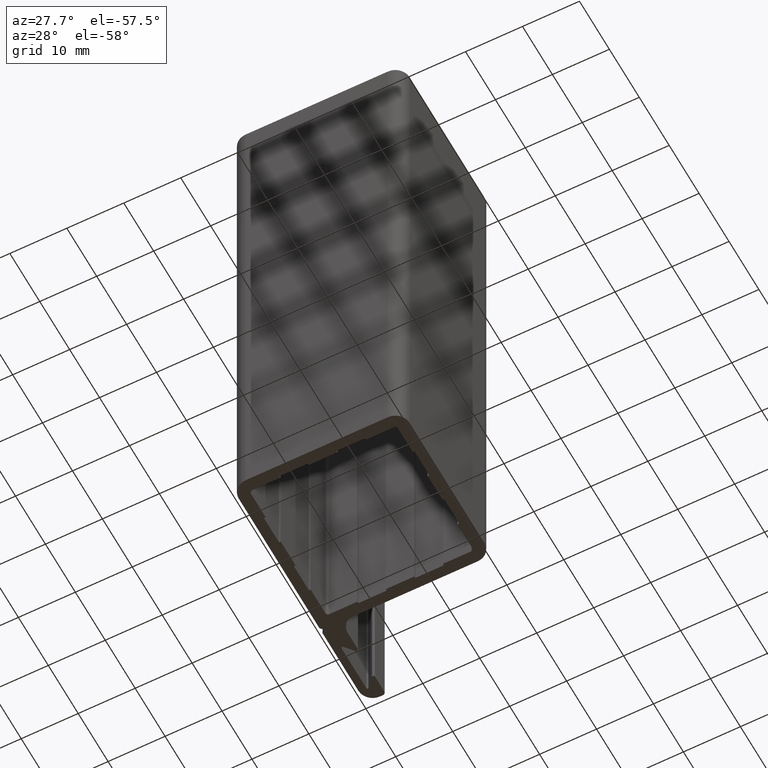
[diagram: clean part render]
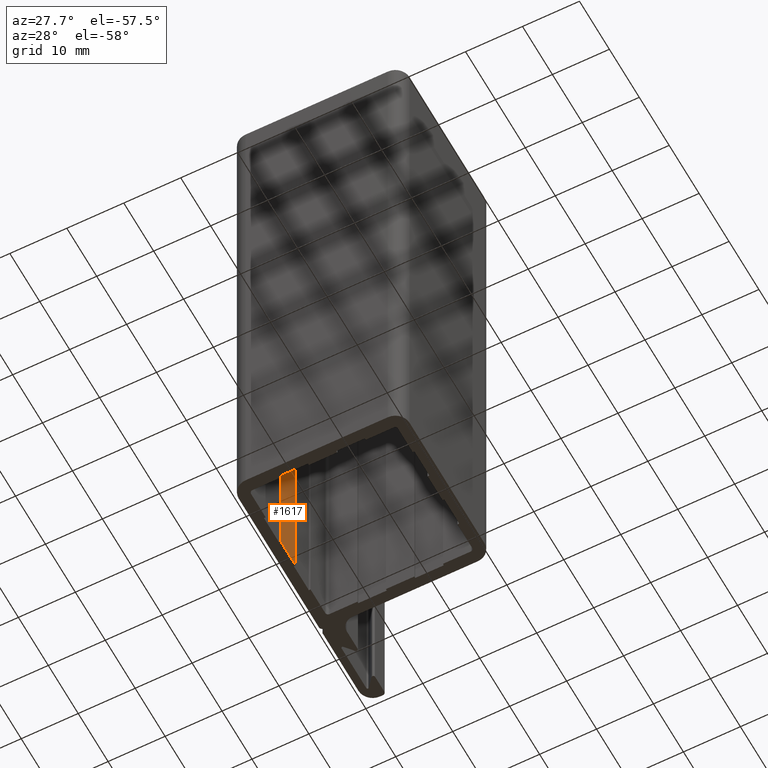
[diagram: same view with one face highlighted and labeled with its STEP entity id]
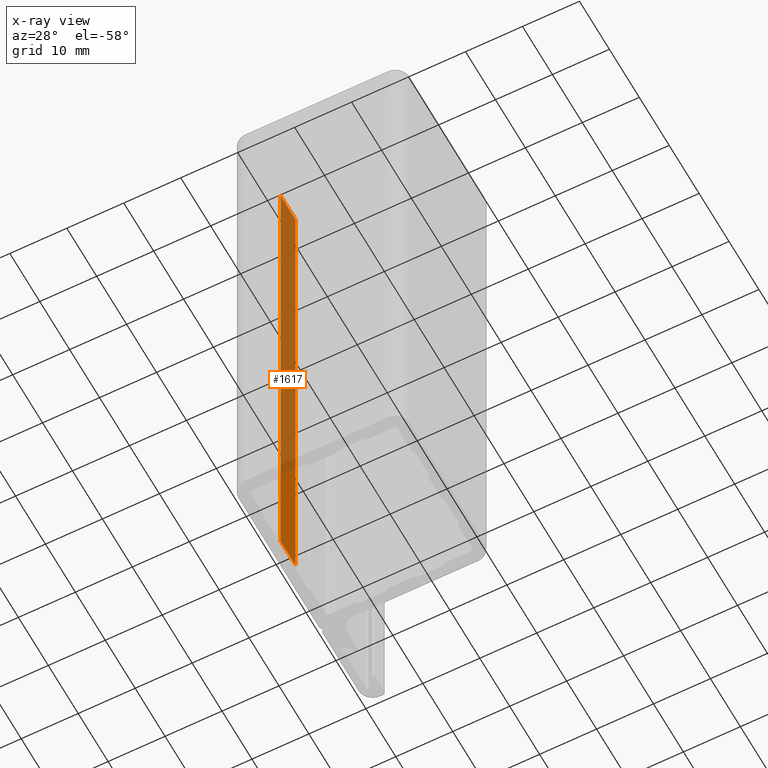
[diagram: x-ray of the same camera — body ghosted, the highlighted face saturated]
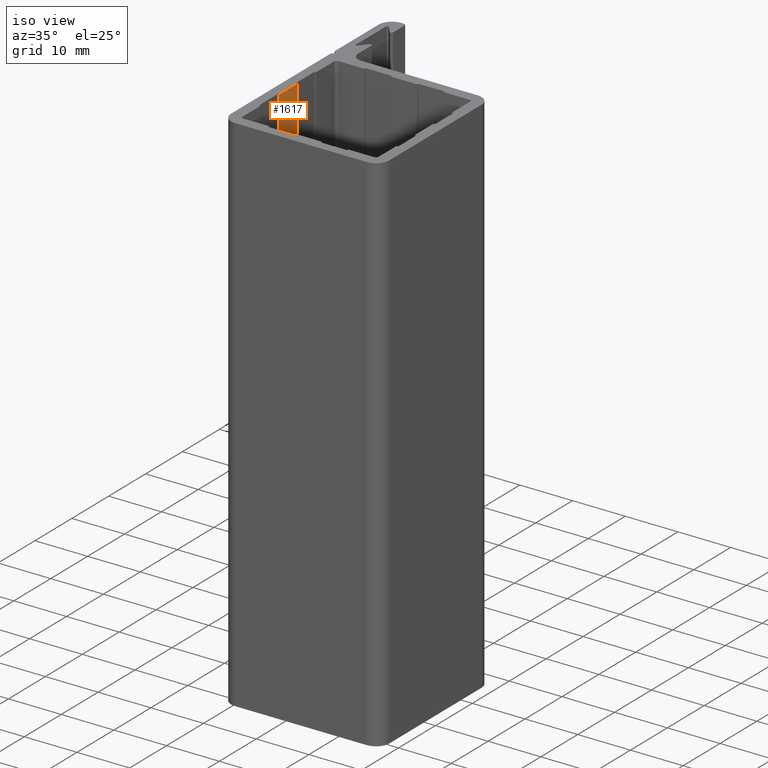
[diagram: same view with one face highlighted and labeled with its STEP entity id]
A machine part, auxiliary view. The second image highlights one B-rep face of the part: STEP entity #1617.
The next image is the same camera in x-ray: the body ghosted, the highlighted face saturated — about 77% of this face is hidden behind the body in this view.
A second angle (iso view) of the same face is appended — the face is thin or edge-on in the first view.
In plain terms, the highlighted planar face has unit normal (1, 0, 0).
Its self-contained STEP definition (entity closure, byte-faithful):
#1561=CARTESIAN_POINT('',(-27.899999997182135,-2.499999999747388,0.0));
#1562=VERTEX_POINT('',#1561);
#1569=CARTESIAN_POINT('',(-27.899999997182135,-2.499999999747388,100.0));
#1570=VERTEX_POINT('',#1569);
#1571=CARTESIAN_POINT('',(-27.899999997182135,-2.499999999747388,0.0));
#1572=DIRECTION('',(0.0,0.0,1.0));
#1573=VECTOR('',#1572,100.0);
#1574=LINE('',#1571,#1573);
#1575=EDGE_CURVE('',#1562,#1570,#1574,.T.);
#1587=CARTESIAN_POINT('',(-27.899999997182135,-2.499999999747388,0.0));
#1588=DIRECTION('',(1.0,0.0,0.0));
#1589=DIRECTION('',(0.0,1.0,0.0));
#1590=AXIS2_PLACEMENT_3D('',#1587,#1588,#1589);
#1591=PLANE('',#1590);
#1592=CARTESIAN_POINT('',(-27.899999997182135,2.499999999747615,0.0));
#1593=VERTEX_POINT('',#1592);
#1594=CARTESIAN_POINT('',(-27.899999997182135,-2.499999999747388,0.0));
#1595=DIRECTION('',(0.0,1.0,0.0));
#1596=VECTOR('',#1595,4.999999999495003);
#1597=LINE('',#1594,#1596);
#1598=EDGE_CURVE('',#1562,#1593,#1597,.T.);
#1599=ORIENTED_EDGE('',*,*,#1598,.T.);
#1600=CARTESIAN_POINT('',(-27.899999997182135,2.499999999747615,100.0));
#1601=VERTEX_POINT('',#1600);
#1602=CARTESIAN_POINT('',(-27.899999997182135,2.499999999747615,0.0));
#1603=DIRECTION('',(0.0,0.0,1.0));
#1604=VECTOR('',#1603,100.0);
#1605=LINE('',#1602,#1604);
#1606=EDGE_CURVE('',#1593,#1601,#1605,.T.);
#1607=ORIENTED_EDGE('',*,*,#1606,.T.);
#1608=CARTESIAN_POINT('',(-27.899999997182135,-2.499999999747388,100.0));
#1609=DIRECTION('',(0.0,1.0,0.0));
#1610=VECTOR('',#1609,4.999999999495003);
#1611=LINE('',#1608,#1610);
#1612=EDGE_CURVE('',#1570,#1601,#1611,.T.);
#1613=ORIENTED_EDGE('',*,*,#1612,.F.);
#1614=ORIENTED_EDGE('',*,*,#1575,.F.);
#1615=EDGE_LOOP('',(#1599,#1607,#1613,#1614));
#1616=FACE_OUTER_BOUND('',#1615,.T.);
#1617=ADVANCED_FACE('',(#1616),#1591,.T.);